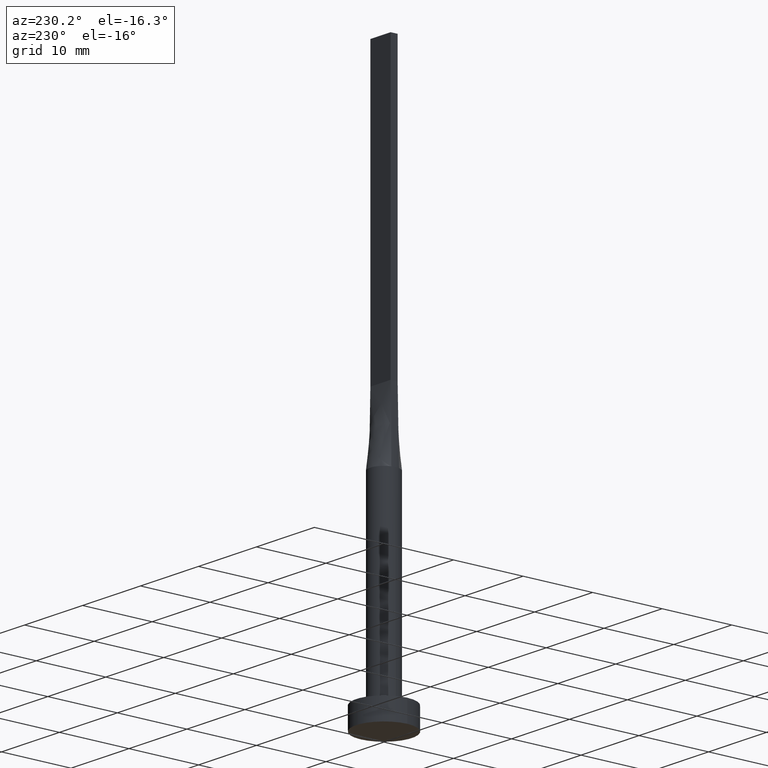
[diagram: clean part render]
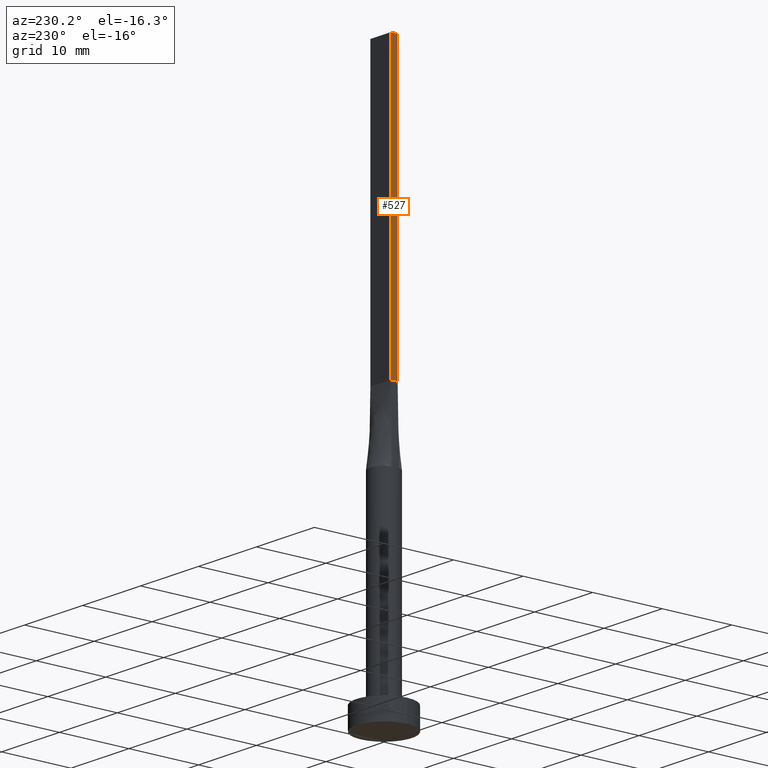
[diagram: same view with one face highlighted and labeled with its STEP entity id]
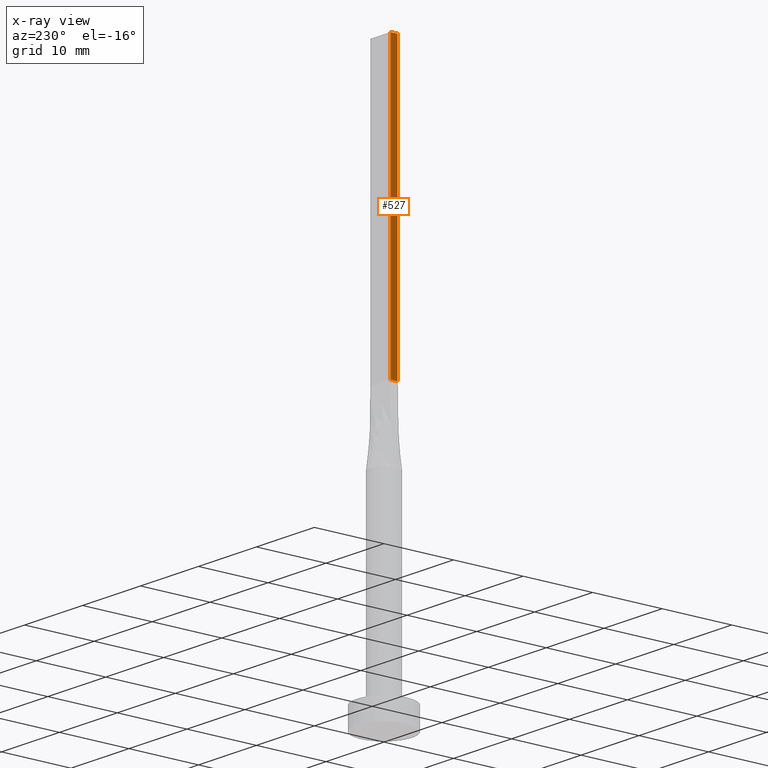
[diagram: x-ray of the same camera — body ghosted, the highlighted face saturated]
A machine part, auxiliary view. The second image highlights one B-rep face of the part: STEP entity #527.
The next image is the same camera in x-ray: the body ghosted, the highlighted face saturated — about 0% of this face is hidden behind the body in this view.
In plain terms, the highlighted planar face has unit normal (1, -0, 0).
Its self-contained STEP definition (entity closure, byte-faithful):
#2 = ORIENTED_EDGE ( 'NONE', *, *, #118, .F. ) ;
#3 = EDGE_CURVE ( 'NONE', #328, #165, #161, .T. ) ;
#5 = DIRECTION ( 'NONE',  ( -2.168404344971009361E-16, -1.000000000000000000, 0.000000000000000000 ) ) ;
#43 = VERTEX_POINT ( 'NONE', #145 ) ;
#50 = CARTESIAN_POINT ( 'NONE',  ( -1.749999999999999778, 0.5000000000000002220, 80.00000000000000000 ) ) ;
#62 = DIRECTION ( 'NONE',  ( -2.168404344971009361E-16, -1.000000000000000000, 0.000000000000000000 ) ) ;
#64 = CARTESIAN_POINT ( 'NONE',  ( -1.750000000000000000, -0.4999999999999995559, 40.00000000000000000 ) ) ;
#82 = CARTESIAN_POINT ( 'NONE',  ( -1.749999999999999778, 0.5000000000000002220, 80.00000000000000000 ) ) ;
#85 = LINE ( 'NONE', #50, #134 ) ;
#99 = ORIENTED_EDGE ( 'NONE', *, *, #3, .T. ) ;
#102 = DIRECTION ( 'NONE',  ( -0.000000000000000000, -0.000000000000000000, -1.000000000000000000 ) ) ;
#118 = EDGE_CURVE ( 'NONE', #328, #43, #85, .T. ) ;
#134 = VECTOR ( 'NONE', #5, 1000.000000000000000 ) ;
#142 = CARTESIAN_POINT ( 'NONE',  ( -1.749999999999999778, 0.5000000000000002220, 40.00000000000000000 ) ) ;
#145 = CARTESIAN_POINT ( 'NONE',  ( -1.750000000000000000, -0.4999999999999995559, 80.00000000000000000 ) ) ;
#147 = LINE ( 'NONE', #142, #562 ) ;
#151 = CARTESIAN_POINT ( 'NONE',  ( -1.749999999999999778, 0.5000000000000002220, 80.00000000000000000 ) ) ;
#161 = LINE ( 'NONE', #205, #541 ) ;
#165 = VERTEX_POINT ( 'NONE', #551 ) ;
#205 = CARTESIAN_POINT ( 'NONE',  ( -1.749999999999999778, 0.5000000000000002220, 80.00000000000000000 ) ) ;
#226 = DIRECTION ( 'NONE',  ( 2.168404344971009361E-16, 1.000000000000000000, 0.000000000000000000 ) ) ;
#272 = EDGE_CURVE ( 'NONE', #165, #301, #147, .T. ) ;
#284 = VECTOR ( 'NONE', #102, 1000.000000000000000 ) ;
#294 = EDGE_LOOP ( 'NONE', ( #430, #440, #2, #99 ) ) ;
#301 = VERTEX_POINT ( 'NONE', #64 ) ;
#313 = LINE ( 'NONE', #553, #284 ) ;
#328 = VERTEX_POINT ( 'NONE', #151 ) ;
#343 = PLANE ( 'NONE',  #393 ) ;
#390 = DIRECTION ( 'NONE',  ( 1.000000000000000000, -2.168404344971009361E-16, 0.000000000000000000 ) ) ;
#393 = AXIS2_PLACEMENT_3D ( 'NONE', #82, #390, #226 ) ;
#430 = ORIENTED_EDGE ( 'NONE', *, *, #272, .T. ) ;
#440 = ORIENTED_EDGE ( 'NONE', *, *, #549, .F. ) ;
#488 = FACE_OUTER_BOUND ( 'NONE', #294, .T. ) ;
#527 = ADVANCED_FACE ( 'NONE', ( #488 ), #343, .F. ) ;
#541 = VECTOR ( 'NONE', #575, 1000.000000000000000 ) ;
#549 = EDGE_CURVE ( 'NONE', #43, #301, #313, .T. ) ;
#551 = CARTESIAN_POINT ( 'NONE',  ( -1.749999999999999778, 0.5000000000000002220, 40.00000000000000000 ) ) ;
#553 = CARTESIAN_POINT ( 'NONE',  ( -1.750000000000000000, -0.4999999999999995559, 80.00000000000000000 ) ) ;
#562 = VECTOR ( 'NONE', #62, 1000.000000000000000 ) ;
#575 = DIRECTION ( 'NONE',  ( -0.000000000000000000, -0.000000000000000000, -1.000000000000000000 ) ) ;